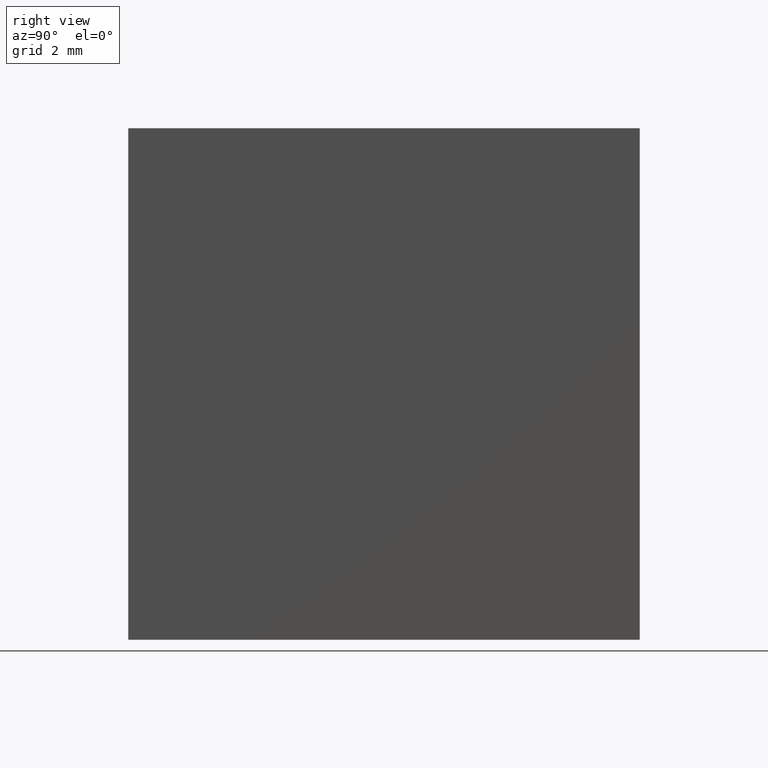
[diagram: clean part render]
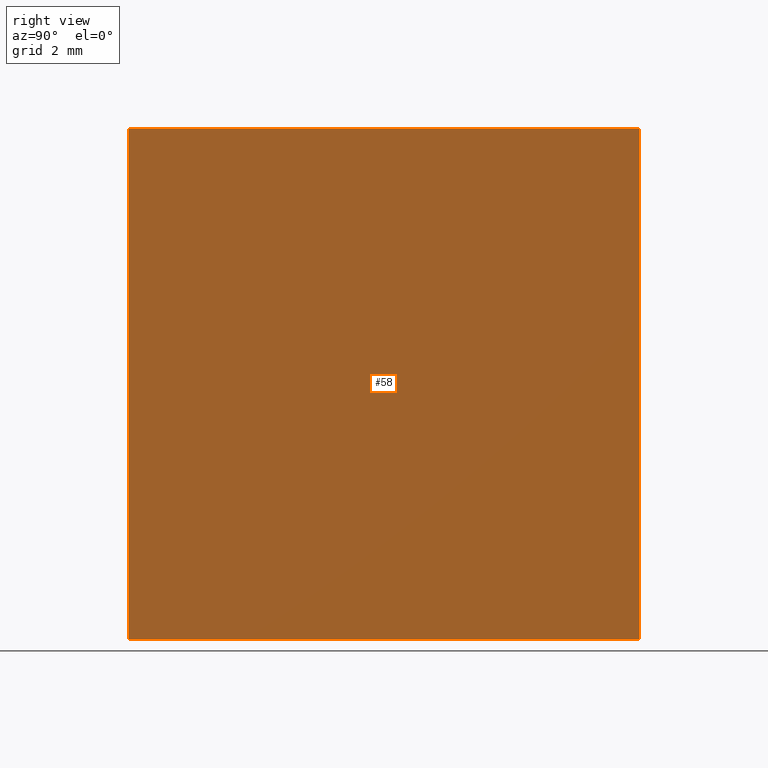
[diagram: same view with one face highlighted and labeled with its STEP entity id]
A machine part, right view. The second image highlights one B-rep face of the part: STEP entity #58.
In plain terms, the highlighted planar face has unit normal (-1, 0, 0).
Its self-contained STEP definition (entity closure, byte-faithful):
#1 = CARTESIAN_POINT ( 'NONE',  ( -127.1532519915778181, 5.000000000000000888, 10.00000000000000000 ) ) ;
#3 = LINE ( 'NONE', #211, #198 ) ;
#17 = CARTESIAN_POINT ( 'NONE',  ( -127.1532519915778181, -5.000000000000000888, 10.00000000000000000 ) ) ;
#26 = DIRECTION ( 'NONE',  ( -0.000000000000000000, 1.000000000000000000, -0.000000000000000000 ) ) ;
#45 = DIRECTION ( 'NONE',  ( -0.000000000000000000, -0.000000000000000000, -1.000000000000000000 ) ) ;
#50 = EDGE_CURVE ( 'NONE', #142, #264, #174, .T. ) ;
#58 = ADVANCED_FACE ( 'NONE', ( #272 ), #155, .F. ) ;
#64 = CARTESIAN_POINT ( 'NONE',  ( -127.1532519915778181, 5.000000000000000888, 0.000000000000000000 ) ) ;
#65 = CARTESIAN_POINT ( 'NONE',  ( -127.1532519915778181, -5.000000000000000888, 10.00000000000000000 ) ) ;
#72 = VERTEX_POINT ( 'NONE', #127 ) ;
#97 = ORIENTED_EDGE ( 'NONE', *, *, #161, .F. ) ;
#99 = VECTOR ( 'NONE', #207, 1000.000000000000000 ) ;
#102 = CARTESIAN_POINT ( 'NONE',  ( -127.1532519915778181, -5.000000000000000888, 0.000000000000000000 ) ) ;
#121 = EDGE_LOOP ( 'NONE', ( #147, #97, #242, #149 ) ) ;
#127 = CARTESIAN_POINT ( 'NONE',  ( -127.1532519915778181, 5.000000000000000888, 10.00000000000000000 ) ) ;
#134 = CARTESIAN_POINT ( 'NONE',  ( -127.1532519915778181, 5.000000000000000888, 0.000000000000000000 ) ) ;
#142 = VERTEX_POINT ( 'NONE', #17 ) ;
#146 = LINE ( 'NONE', #64, #235 ) ;
#147 = ORIENTED_EDGE ( 'NONE', *, *, #202, .T. ) ;
#149 = ORIENTED_EDGE ( 'NONE', *, *, #50, .T. ) ;
#155 = PLANE ( 'NONE',  #253 ) ;
#161 = EDGE_CURVE ( 'NONE', #72, #172, #274, .T. ) ;
#166 = DIRECTION ( 'NONE',  ( -0.000000000000000000, 1.000000000000000000, -0.000000000000000000 ) ) ;
#171 = VECTOR ( 'NONE', #45, 1000.000000000000000 ) ;
#172 = VERTEX_POINT ( 'NONE', #134 ) ;
#174 = LINE ( 'NONE', #65, #99 ) ;
#186 = EDGE_CURVE ( 'NONE', #142, #72, #3, .T. ) ;
#192 = DIRECTION ( 'NONE',  ( 0.000000000000000000, 0.000000000000000000, 1.000000000000000000 ) ) ;
#198 = VECTOR ( 'NONE', #26, 1000.000000000000000 ) ;
#202 = EDGE_CURVE ( 'NONE', #264, #172, #146, .T. ) ;
#205 = DIRECTION ( 'NONE',  ( -1.000000000000000000, 0.000000000000000000, 0.000000000000000000 ) ) ;
#207 = DIRECTION ( 'NONE',  ( -0.000000000000000000, -0.000000000000000000, -1.000000000000000000 ) ) ;
#211 = CARTESIAN_POINT ( 'NONE',  ( -127.1532519915778181, 5.000000000000000888, 10.00000000000000000 ) ) ;
#230 = CARTESIAN_POINT ( 'NONE',  ( -127.1532519915778181, 5.000000000000000888, 10.00000000000000000 ) ) ;
#235 = VECTOR ( 'NONE', #166, 1000.000000000000000 ) ;
#242 = ORIENTED_EDGE ( 'NONE', *, *, #186, .F. ) ;
#253 = AXIS2_PLACEMENT_3D ( 'NONE', #1, #205, #192 ) ;
#264 = VERTEX_POINT ( 'NONE', #102 ) ;
#272 = FACE_OUTER_BOUND ( 'NONE', #121, .T. ) ;
#274 = LINE ( 'NONE', #230, #171 ) ;